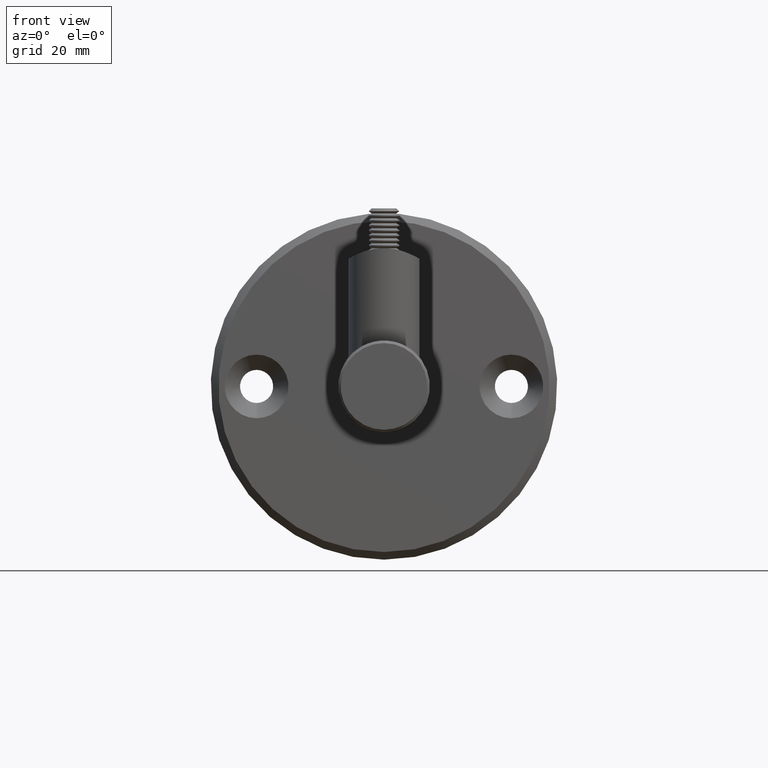
[diagram: clean part render]
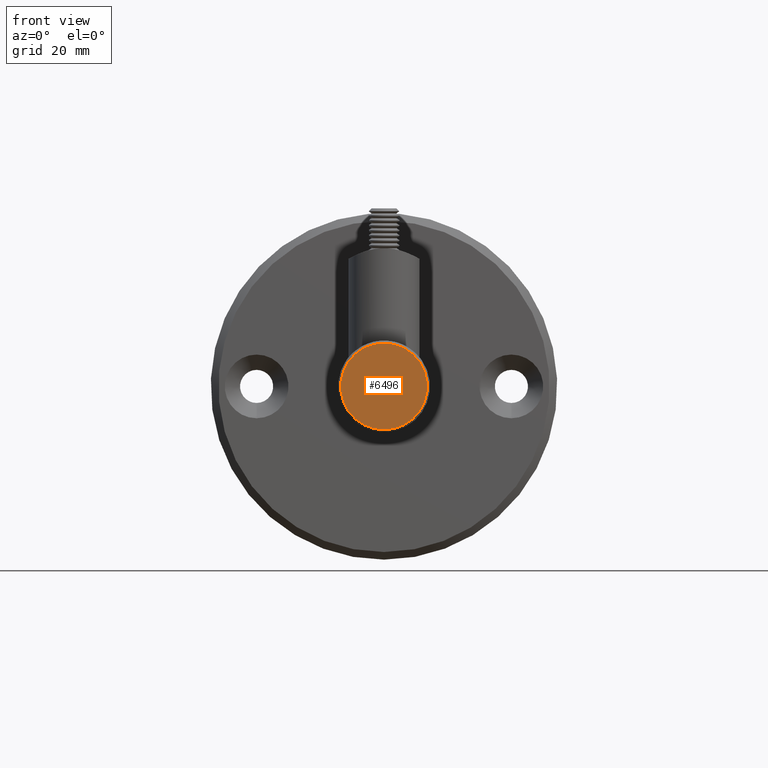
[diagram: same view with one face highlighted and labeled with its STEP entity id]
A machine part, front view. The second image highlights one B-rep face of the part: STEP entity #6496.
In plain terms, the highlighted planar face has unit normal (0, 1, 0).
Its self-contained STEP definition (entity closure, byte-faithful):
#276 = CARTESIAN_POINT ( 'NONE',  ( 0.0000000000000000000, -50.00000000000000000, 8.499999999999980500 ) ) ;
#446 = CARTESIAN_POINT ( 'NONE',  ( 0.0000000000000000000, -50.00000000000000000, 0.0000000000000000000 ) ) ;
#4303 = FACE_OUTER_BOUND ( 'NONE', #16599, .T. ) ;
#5636 = EDGE_CURVE ( 'NONE', #13745, #13745, #13741, .T. ) ;
#6396 = AXIS2_PLACEMENT_3D ( 'NONE', #7399, #14916, #17588 ) ;
#6496 = ADVANCED_FACE ( 'NONE', ( #4303 ), #14790, .F. ) ;
#7399 = CARTESIAN_POINT ( 'NONE',  ( 0.0000000000000000000, -50.00000000000000000, 9.000000000000000000 ) ) ;
#10780 = DIRECTION ( 'NONE',  ( 0.0000000000000000000, 0.0000000000000000000, 1.000000000000000000 ) ) ;
#11938 = ORIENTED_EDGE ( 'NONE', *, *, #5636, .T. ) ;
#13513 = DIRECTION ( 'NONE',  ( -0.0000000000000000000, -1.000000000000000000, -0.0000000000000000000 ) ) ;
#13741 = CIRCLE ( 'NONE', #17971, 8.499999999999980500 ) ;
#13745 = VERTEX_POINT ( 'NONE', #276 ) ;
#14790 = PLANE ( 'NONE',  #6396 ) ;
#14916 = DIRECTION ( 'NONE',  ( 0.0000000000000000000, 1.000000000000000000, 0.0000000000000000000 ) ) ;
#16599 = EDGE_LOOP ( 'NONE', ( #11938 ) ) ;
#17588 = DIRECTION ( 'NONE',  ( 0.0000000000000000000, -0.0000000000000000000, 1.000000000000000000 ) ) ;
#17971 = AXIS2_PLACEMENT_3D ( 'NONE', #446, #13513, #10780 ) ;